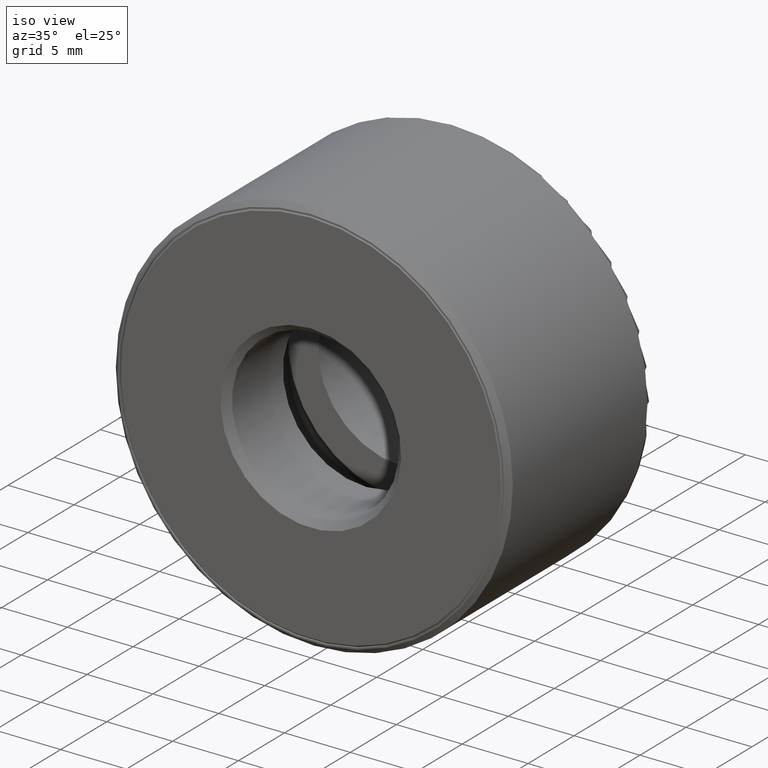
[diagram: clean part render]
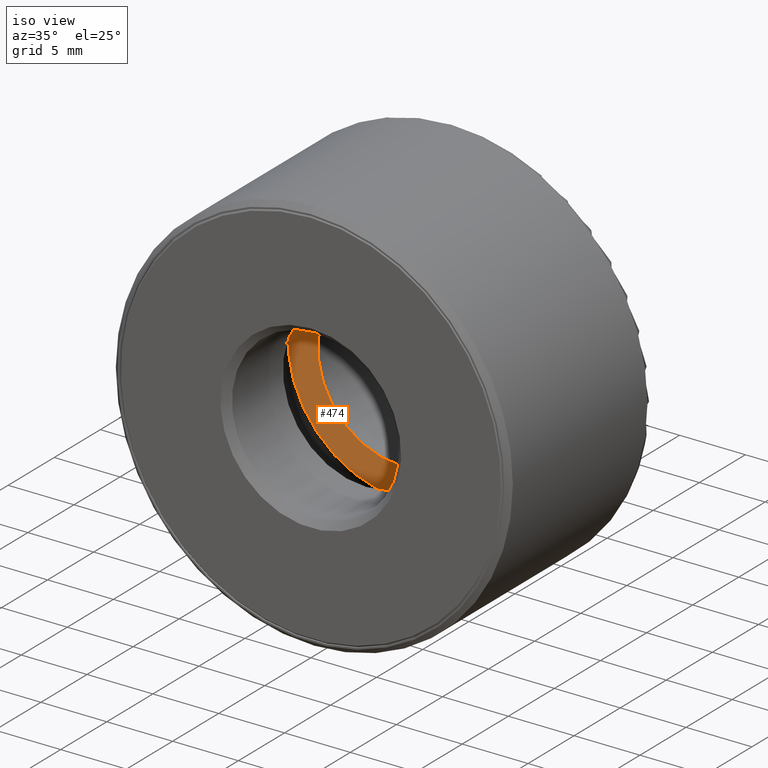
[diagram: same view with one face highlighted and labeled with its STEP entity id]
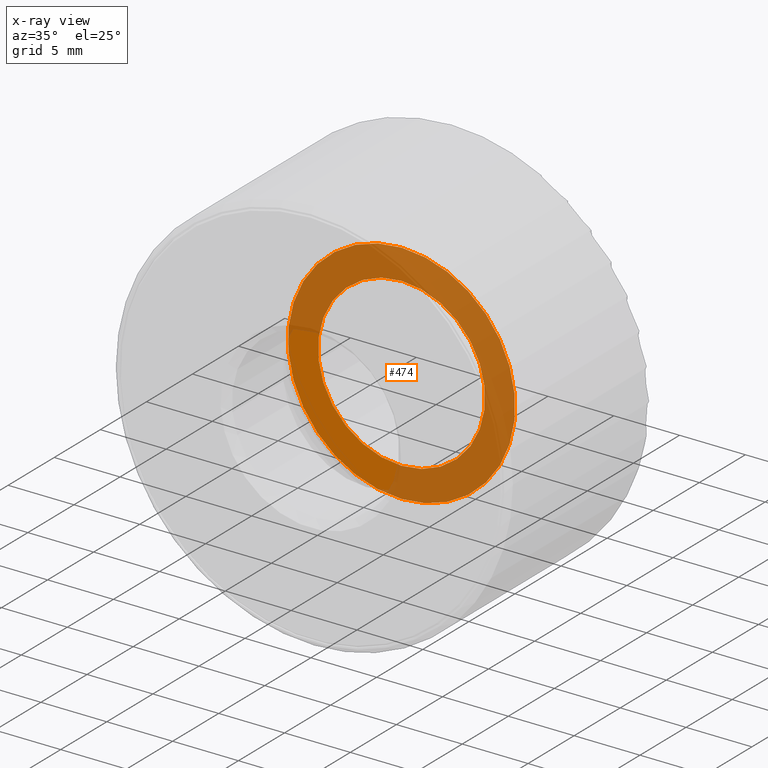
[diagram: x-ray of the same camera — body ghosted, the highlighted face saturated]
A machine part, iso view. The second image highlights one B-rep face of the part: STEP entity #474.
The next image is the same camera in x-ray: the body ghosted, the highlighted face saturated — about 75% of this face is hidden behind the body in this view.
In plain terms, the highlighted planar face has unit normal (0, -1, 0).
Its self-contained STEP definition (entity closure, byte-faithful):
#1 = DIRECTION ( 'NONE',  ( -0.0000000000000000000, 1.000000000000000000, -0.0000000000000000000 ) ) ;
#18 = AXIS2_PLACEMENT_3D ( 'NONE', #405, #591, #82 ) ;
#19 = EDGE_LOOP ( 'NONE', ( #580 ) ) ;
#66 = CIRCLE ( 'NONE', #260, 0.2499999999999998100 ) ;
#70 = ORIENTED_EDGE ( 'NONE', *, *, #307, .T. ) ;
#72 = CIRCLE ( 'NONE', #366, 0.3397500000000001100 ) ;
#82 = DIRECTION ( 'NONE',  ( 0.0000000000000000000, -0.0000000000000000000, -1.000000000000000000 ) ) ;
#119 = EDGE_CURVE ( 'NONE', #367, #367, #72, .T. ) ;
#148 = CARTESIAN_POINT ( 'NONE',  ( 0.0000000000000000000, 0.3875000000000004000, 0.2499999999999998100 ) ) ;
#160 = FACE_OUTER_BOUND ( 'NONE', #19, .T. ) ;
#257 = VERTEX_POINT ( 'NONE', #148 ) ;
#260 = AXIS2_PLACEMENT_3D ( 'NONE', #267, #579, #451 ) ;
#267 = CARTESIAN_POINT ( 'NONE',  ( 0.0000000000000000000, 0.3875000000000004000, 0.0000000000000000000 ) ) ;
#288 = CARTESIAN_POINT ( 'NONE',  ( 0.0000000000000000000, 0.3875000000000004600, 0.0000000000000000000 ) ) ;
#307 = EDGE_CURVE ( 'NONE', #257, #257, #66, .T. ) ;
#366 = AXIS2_PLACEMENT_3D ( 'NONE', #288, #1, #428 ) ;
#367 = VERTEX_POINT ( 'NONE', #602 ) ;
#405 = CARTESIAN_POINT ( 'NONE',  ( 2.948721720180776300E-016, 0.3875000000000004600, 0.0000000000000000000 ) ) ;
#428 = DIRECTION ( 'NONE',  ( 0.0000000000000000000, 0.0000000000000000000, 1.000000000000000000 ) ) ;
#451 = DIRECTION ( 'NONE',  ( 0.0000000000000000000, 0.0000000000000000000, 1.000000000000000000 ) ) ;
#474 = ADVANCED_FACE ( 'NONE', ( #601, #160 ), #587, .T. ) ;
#579 = DIRECTION ( 'NONE',  ( -0.0000000000000000000, 1.000000000000000000, -0.0000000000000000000 ) ) ;
#580 = ORIENTED_EDGE ( 'NONE', *, *, #119, .F. ) ;
#587 = PLANE ( 'NONE',  #18 ) ;
#591 = DIRECTION ( 'NONE',  ( 0.0000000000000000000, -1.000000000000000000, 0.0000000000000000000 ) ) ;
#600 = EDGE_LOOP ( 'NONE', ( #70 ) ) ;
#601 = FACE_BOUND ( 'NONE', #600, .T. ) ;
#602 = CARTESIAN_POINT ( 'NONE',  ( 0.0000000000000000000, 0.3875000000000004600, 0.3397500000000001100 ) ) ;